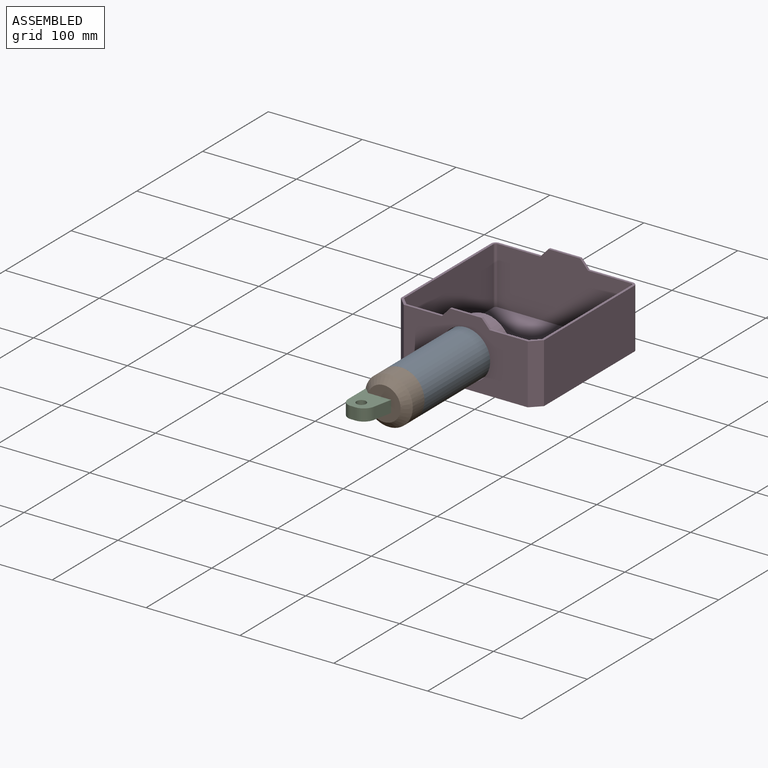
[diagram: assembled view]
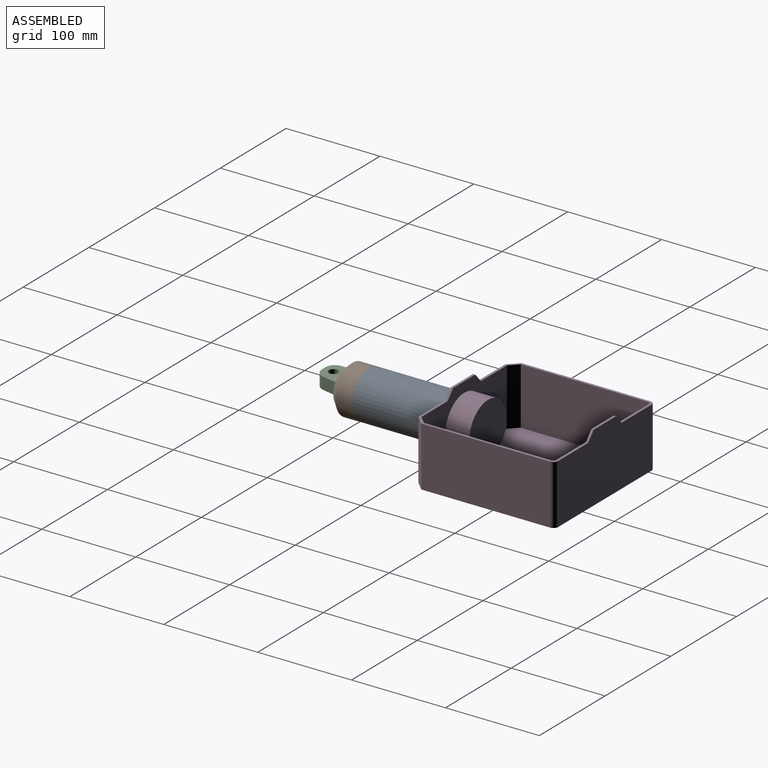
[diagram: assembled view, second angle]
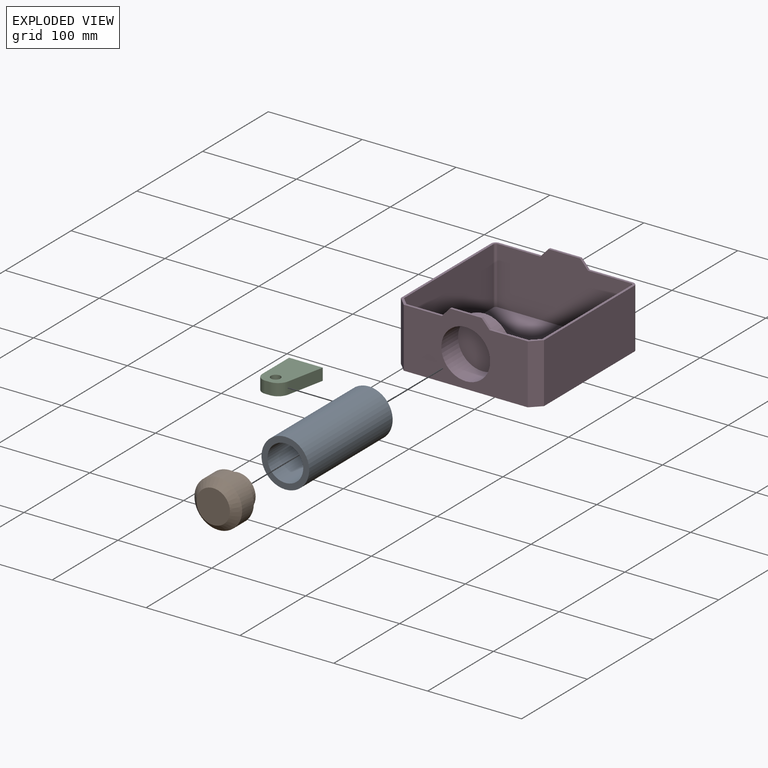
[diagram: exploded view]
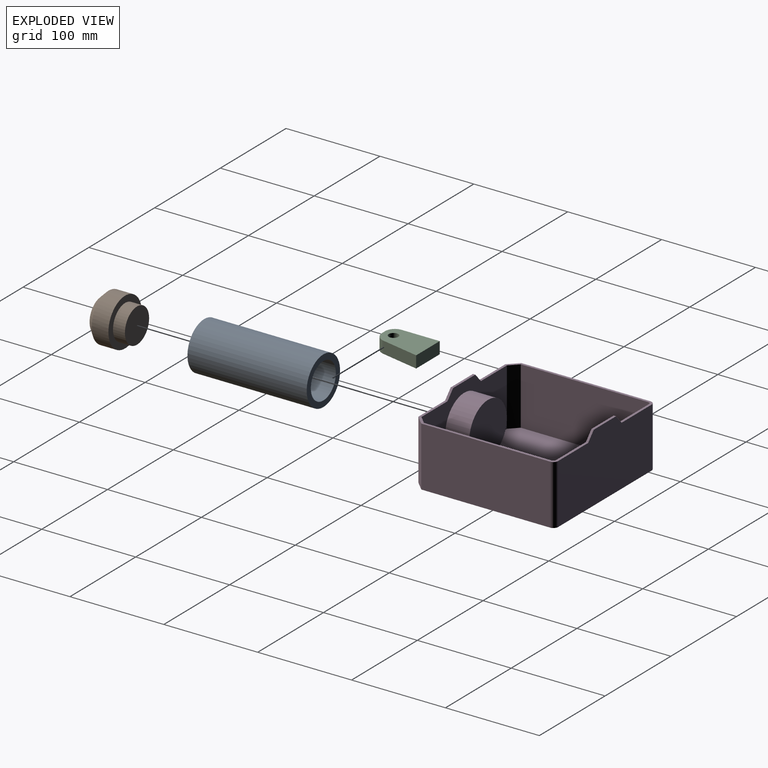
[diagram: exploded view, second angle]
ASSEMBLY  parts=4 mates=3
PART A: 4 faces, bbox 50.8x127x50.8 mm
  f0: plane 50.8x50.8mm, normal (0,1,0), area 886.7mm2, adj f2,f3
  f1: plane 50.8x50.8mm, normal (0,-1,0), area 886.7mm2, adj f2,f3
  f2: cylinder r=25.4mm len=127mm, axis (0,-1,0), area 20268.3mm2, adj f0,f1
  f3: cylinder r=19.05mm len=127mm, axis (0,-1,0), area 15201.2mm2, adj f0,f1
PART B: 6 faces, bbox 50.8x38.1x50.8 mm
  f0: cylinder r=18.41mm len=36.83mm, axis (0,-1,0), area 1469.5mm2, adj f2,f4
  f1: cylinder r=25.4mm len=50.8mm, axis (0,1,0), area 2837.6mm2, adj f2,f5
  f2: plane 50.8x50.8mm, normal (0,-1,0), area 961.5mm2, adj f0,f1
  f3: plane 35.56x35.56mm, normal (0,1,0), area 993.1mm2, adj f5
  f4: plane 36.83x36.83mm, normal (0,-1,0), area 1065.4mm2, adj f0
  f5: cone r=17.78mm half-angle=45deg, axis (0,-1,0), area 1461.8mm2, adj f1,f3
PART C: 9 faces, bbox 35.8x50.8x12.7 mm
  f0: plane 35.82x12.7mm, normal (0,1,0), area 455mm2, adj f1,f3,f4,f5
  f1: plane 40.64x12.7mm, normal (-1,0,0), area 516.1mm2, adj f0,f4,f5,f8
  f2: plane 12.7x4.88mm, normal (0,-1,0), area 62mm2, adj f4,f5,f7,f8
  f3: plane 40.65x12.7mm, normal (0.98,-0.2,0), area 527mm2, adj f0,f4,f5,f7
  f4: plane 50.8x35.82mm, normal (0,0,1), area 1430.6mm2, adj f0,f1,f2,f3,f6,f7,f8
  f5: plane 50.8x35.82mm, normal (0,0,-1), area 1430.6mm2, adj f0,f1,f2,f3,f6,f7,f8
  f6: cylinder r=5.08mm len=12.7mm, axis (0,0,-1), area 405.4mm2, adj f4,f5
  f7: cylinder r=12.7mm len=12.7mm, axis (0,0,-1), area 220.7mm2, adj f2,f3,f4,f5
  f8: cylinder r=10.16mm len=12.7mm, axis (0,0,-1), area 202.7mm2, adj f1,f2,f4,f5
PART D: 30 faces, bbox 152.4x152.4x73 mm
  f0: plane 152.4x50.8mm, normal (0,0,1), area 614.1mm2, adj f1,f6,f11,f12,f13,f14,f17,f20
  f1: plane 9.46x8.48mm, normal (-0.74,0,0.67), area 32.3mm2, adj f0,f2,f13,f24
  f2: plane 33.85x2.54mm, normal (0,0,1), area 86mm2, adj f1,f3,f13,f24
  f3: plane 9.46x8.48mm, normal (0.74,0,0.67), area 32.3mm2, adj f2,f4,f13,f24
  f4: plane 152.4x50.8mm, normal (0,0,1), area 614.1mm2, adj f3,f8,f9,f12,f13,f15,f16,f22
  f5: plane 52.07x52.07mm, normal (0,-1,0), area 2129.4mm2, adj f18
  f6: plane 137.16x63.5mm, normal (-1,0,0), area 8709.7mm2, adj f0,f7,f14,f17
  f7: plane 152.4x152.4mm, normal (0,0,-1), area 23111.5mm2, adj f6,f8,f12,f13,f14,f15,f16,f17
  f8: plane 137.16x63.5mm, normal (1,0,0), area 8709.7mm2, adj f4,f7,f15,f16
  f9: plane 9.46x8.48mm, normal (0.74,0,0.67), area 32.3mm2, adj f4,f10,f12,f23
  f10: plane 33.85x2.54mm, normal (0,0,1), area 86mm2, adj f9,f11,f12,f23
  f11: plane 9.46x8.48mm, normal (-0.74,0,0.67), area 32.3mm2, adj f0,f10,f12,f23
  f12: plane 132.08x72.96mm, normal (0,-1,0), area 6657.9mm2, adj f0,f4,f7,f9,f10,f11,f14,f15
  f13: plane 142.24x72.96mm, normal (0,1,0), area 9432.5mm2, adj f0,f1,f2,f3,f4,f7,f16,f17
  f14: plane 63.5x10.16mm, normal (-0.71,-0.71,0), area 912.4mm2, adj f0,f6,f7,f12
  f15: plane 63.5x10.16mm, normal (0.71,-0.71,0), area 912.4mm2, adj f4,f7,f8,f12
  f16: cylinder r=5.08mm len=63.5mm, axis (0,0,1), area 506.7mm2, adj f4,f7,f8,f13
  f17: cylinder r=5.08mm len=63.5mm, axis (0,0,-1), area 506.7mm2, adj f0,f6,f7,f13
  f18: cylinder r=26.04mm len=52.07mm, axis (0,-1,0), area 4155mm2, adj f5,f12
  f19: plane 57.15x57.15mm, normal (0,1,0), area 2565.2mm2, adj f29
  f20: plane 136.11x60.96mm, normal (1,0,0), area 8297.1mm2, adj f0,f21,f25,f28
  f21: plane 147.32x147.32mm, normal (0,0,1), area 21625.2mm2, adj f20,f22,f23,f24,f25,f26,f27,f28
  f22: plane 136.11x60.96mm, normal (-1,0,0), area 8297.1mm2, adj f4,f21,f26,f27
  f23: plane 129.98x70.42mm, normal (0,1,0), area 5758.4mm2, adj f0,f4,f9,f10,f11,f21,f25,f26
  f24: plane 142.24x70.42mm, normal (0,-1,0), area 9071.2mm2, adj f0,f1,f2,f3,f4,f21,f27,f28
  f25: plane 60.96x8.67mm, normal (0.71,0.71,0), area 747.6mm2, adj f0,f20,f21,f23
  f26: plane 60.96x8.67mm, normal (-0.71,0.71,0), area 747.6mm2, adj f4,f21,f22,f23
  f27: cylinder r=2.54mm len=60.96mm, axis (0,0,1), area 243.2mm2, adj f4,f21,f22,f24
  f28: cylinder r=2.54mm len=60.96mm, axis (0,0,-1), area 243.2mm2, adj f0,f20,f21,f24
  f29: cylinder r=28.57mm len=57.15mm, axis (0,-1,0), area 4560.4mm2, adj f19,f23
PLACE A t=(-123.96,-151.47,9.6)mm
PLACE B rot(axis=(0,0,1),180deg) t=(-123.96,-278.47,9.6)mm
PLACE C t=(-122.55,-283.62,2.6)mm
PLACE D t=(-149.14,-27.01,-23.87)mm
MATE pin_slot A.f2 <-> B.f0  axis (0,-1,0) through (-123.96,-278.47,9.6)mm
MATE pin_slot D.f18 <-> A.f2  axis (0,-1,0) through (-123.96,-151.47,9.6)mm
MATE slider A.f2 <-> D.f18  axis (0,-1,0) through (-123.96,-214.97,9.6)mm
